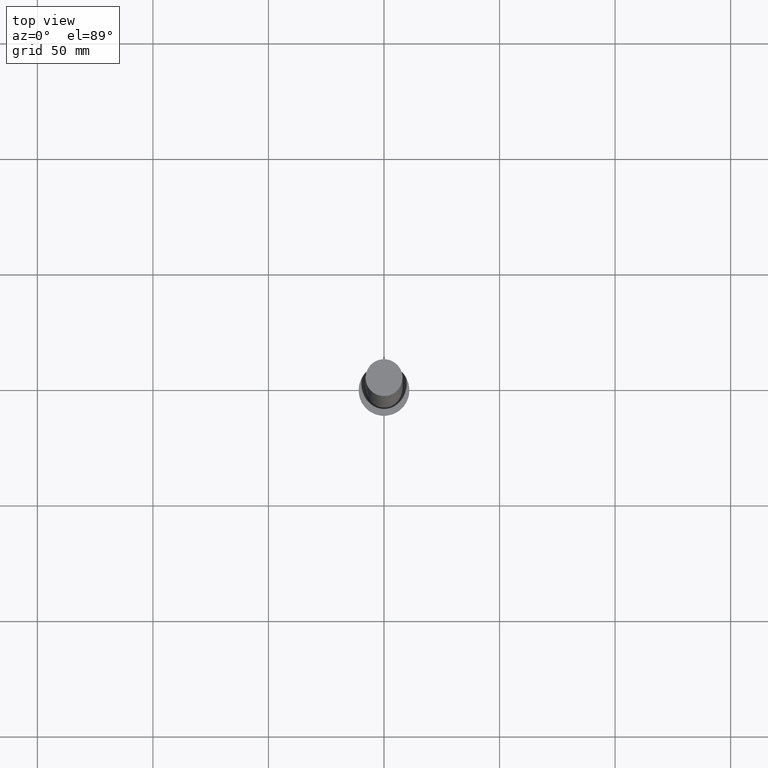
[diagram: clean part render]
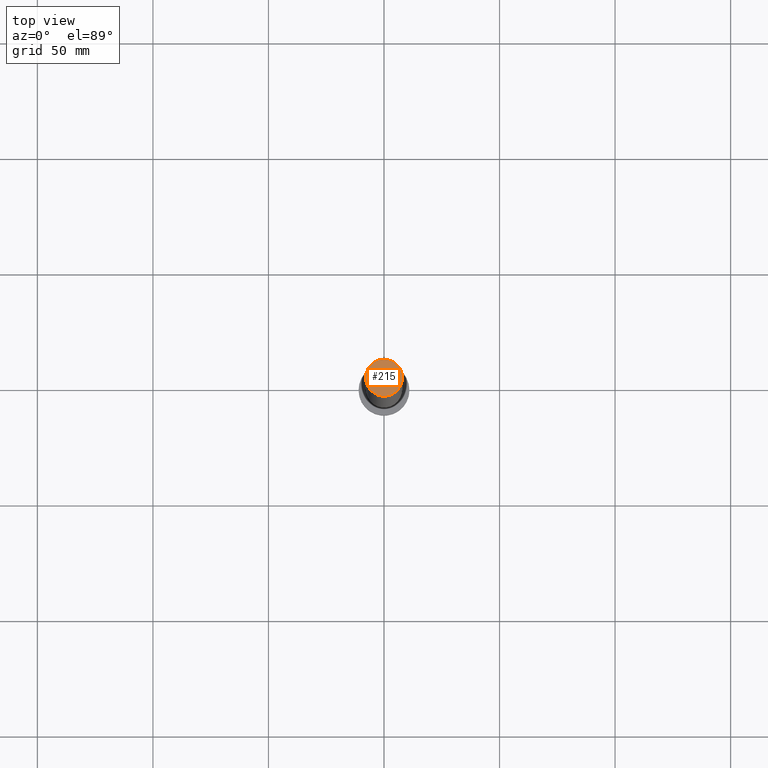
[diagram: same view with one face highlighted and labeled with its STEP entity id]
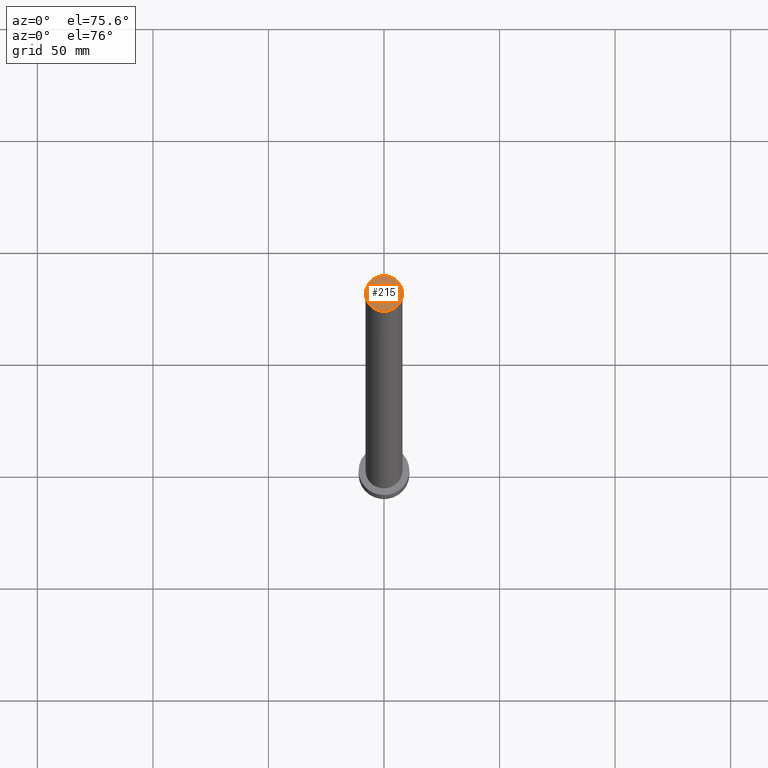
[diagram: same view with one face highlighted and labeled with its STEP entity id]
A machine part, top view. The second image highlights one B-rep face of the part: STEP entity #215.
A second angle (auxiliary view) of the same face is appended — the face is thin or edge-on in the first view.
In plain terms, the highlighted planar face has unit normal (0, 0, 1).
Its self-contained STEP definition (entity closure, byte-faithful):
#9 = AXIS2_PLACEMENT_3D ( 'NONE', #123, #94, #70 ) ;
#10 = EDGE_CURVE ( 'NONE', #89, #50, #25, .T. ) ;
#25 = CIRCLE ( 'NONE', #9, 8.000000000000000000 ) ;
#43 = EDGE_LOOP ( 'NONE', ( #223, #126 ) ) ;
#45 = CIRCLE ( 'NONE', #232, 8.000000000000000000 ) ;
#50 = VERTEX_POINT ( 'NONE', #186 ) ;
#55 = DIRECTION ( 'NONE',  ( 1.000000000000000000, 0.000000000000000000, 0.000000000000000000 ) ) ;
#70 = DIRECTION ( 'NONE',  ( 1.000000000000000000, 0.000000000000000000, 0.000000000000000000 ) ) ;
#74 = DIRECTION ( 'NONE',  ( 0.000000000000000000, 0.000000000000000000, 1.000000000000000000 ) ) ;
#89 = VERTEX_POINT ( 'NONE', #219 ) ;
#94 = DIRECTION ( 'NONE',  ( 0.000000000000000000, 0.000000000000000000, 1.000000000000000000 ) ) ;
#96 = CARTESIAN_POINT ( 'NONE',  ( 0.000000000000000000, 0.000000000000000000, 315.0000000000000000 ) ) ;
#113 = DIRECTION ( 'NONE',  ( 1.000000000000000000, 0.000000000000000000, -0.000000000000000000 ) ) ;
#115 = CARTESIAN_POINT ( 'NONE',  ( 0.000000000000000000, 0.000000000000000000, 315.0000000000000000 ) ) ;
#123 = CARTESIAN_POINT ( 'NONE',  ( 0.000000000000000000, 0.000000000000000000, 315.0000000000000000 ) ) ;
#126 = ORIENTED_EDGE ( 'NONE', *, *, #152, .T. ) ;
#146 = PLANE ( 'NONE',  #244 ) ;
#147 = FACE_OUTER_BOUND ( 'NONE', #43, .T. ) ;
#152 = EDGE_CURVE ( 'NONE', #50, #89, #45, .T. ) ;
#186 = CARTESIAN_POINT ( 'NONE',  ( 8.000000000000000000, 9.797174393178825657E-16, 315.0000000000000000 ) ) ;
#215 = ADVANCED_FACE ( 'NONE', ( #147 ), #146, .T. ) ;
#219 = CARTESIAN_POINT ( 'NONE',  ( -8.000000000000000000, 0.000000000000000000, 315.0000000000000000 ) ) ;
#223 = ORIENTED_EDGE ( 'NONE', *, *, #10, .T. ) ;
#225 = DIRECTION ( 'NONE',  ( 0.000000000000000000, 0.000000000000000000, 1.000000000000000000 ) ) ;
#232 = AXIS2_PLACEMENT_3D ( 'NONE', #96, #74, #55 ) ;
#244 = AXIS2_PLACEMENT_3D ( 'NONE', #115, #225, #113 ) ;